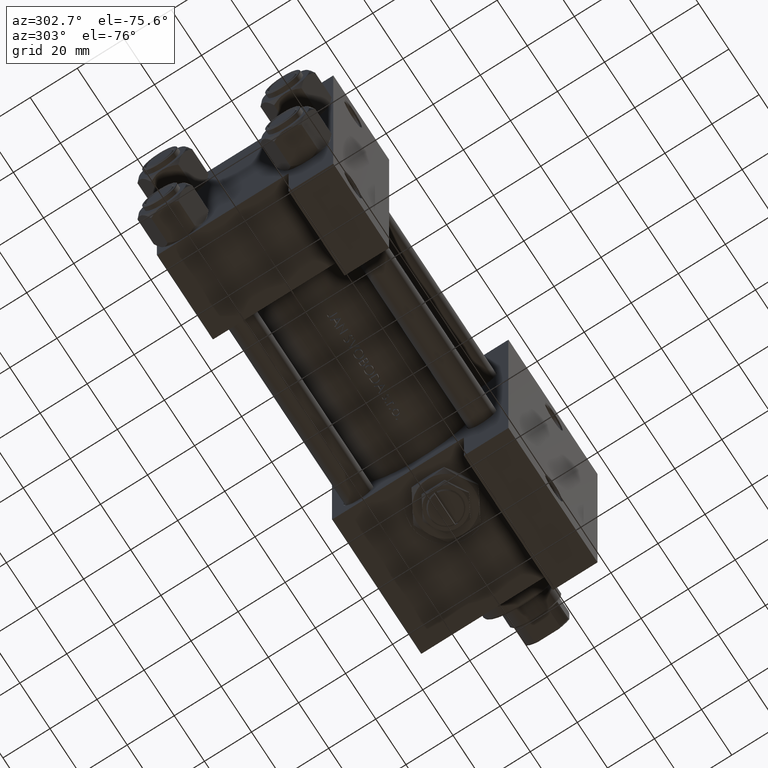
[diagram: clean part render]
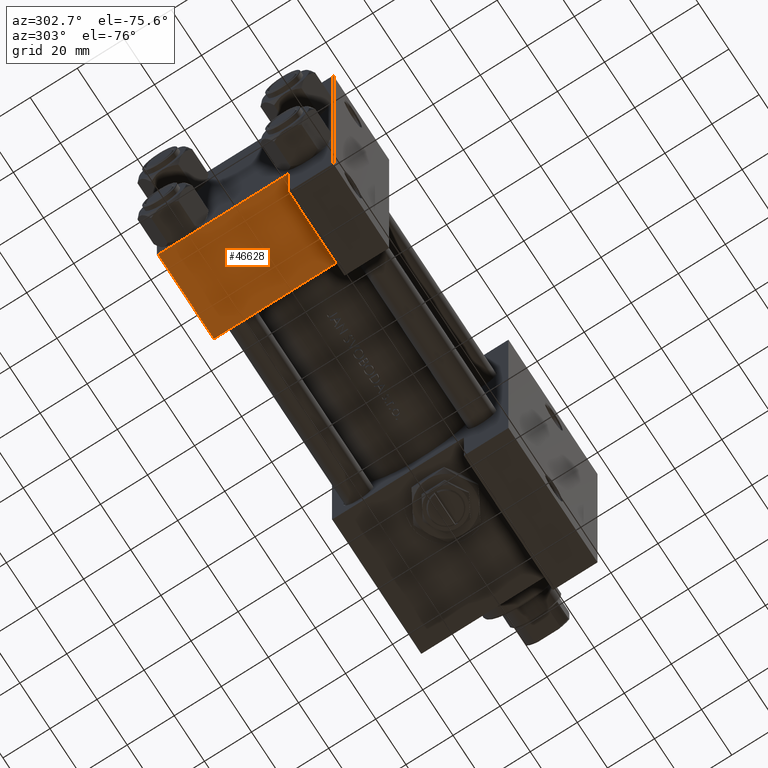
[diagram: same view with one face highlighted and labeled with its STEP entity id]
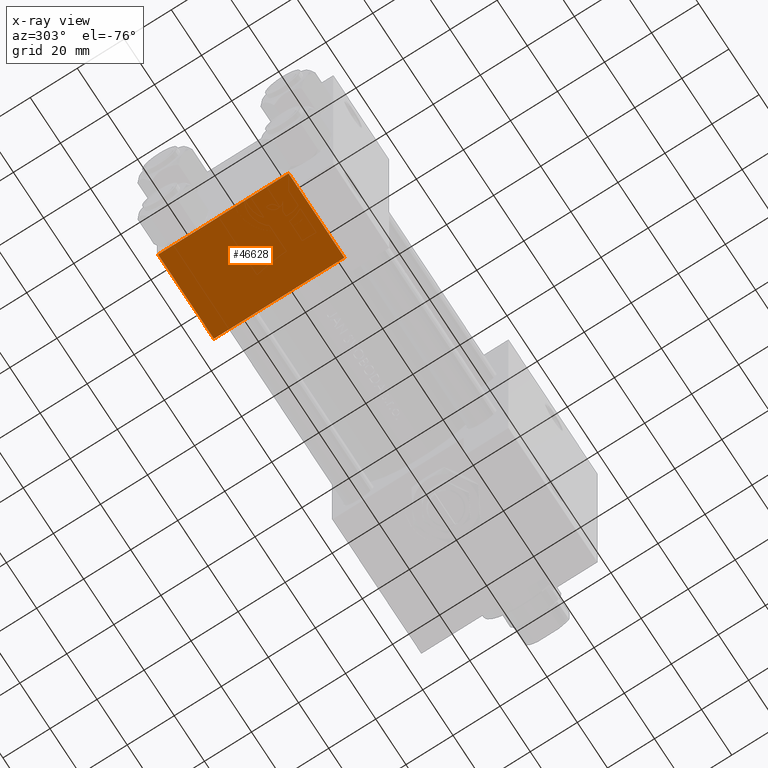
[diagram: x-ray of the same camera — body ghosted, the highlighted face saturated]
A machine part, auxiliary view. The second image highlights one B-rep face of the part: STEP entity #46628.
The next image is the same camera in x-ray: the body ghosted, the highlighted face saturated — about 0% of this face is hidden behind the body in this view.
In plain terms, the highlighted planar face has unit normal (0, 0, -1).
Its self-contained STEP definition (entity closure, byte-faithful):
#1058 = LINE ( 'NONE', #34710, #45488 ) ;
#3057 = ORIENTED_EDGE ( 'NONE', *, *, #31985, .F. ) ;
#3506 = CARTESIAN_POINT ( 'NONE',  ( 0.000000000000000000, 37.49999999999999289, -18.49999999999999645 ) ) ;
#4250 = CARTESIAN_POINT ( 'NONE',  ( 37.00000000000000000, 37.49999999999999289, 37.00000000000000000 ) ) ;
#5045 = DIRECTION ( 'NONE',  ( 0.000000000000000000, -0.000000000000000000, 1.000000000000000000 ) ) ;
#6589 = VERTEX_POINT ( 'NONE', #35407 ) ;
#8298 = EDGE_CURVE ( 'NONE', #33370, #17934, #22436, .T. ) ;
#9250 = EDGE_LOOP ( 'NONE', ( #38232, #3057, #15443, #44083 ) ) ;
#13660 = VERTEX_POINT ( 'NONE', #3506 ) ;
#15443 = ORIENTED_EDGE ( 'NONE', *, *, #34949, .T. ) ;
#17934 = VERTEX_POINT ( 'NONE', #18090 ) ;
#18090 = CARTESIAN_POINT ( 'NONE',  ( 37.00000000000000711, 37.50000000000000711, -18.50000000000000355 ) ) ;
#18872 = DIRECTION ( 'NONE',  ( 0.000000000000000000, 0.000000000000000000, -1.000000000000000000 ) ) ;
#22436 = LINE ( 'NONE', #37635, #35011 ) ;
#23236 = VECTOR ( 'NONE', #41133, 1000.000000000000000 ) ;
#23496 = CARTESIAN_POINT ( 'NONE',  ( 37.00000000000000000, 37.49999999999999289, 37.50000000000000000 ) ) ;
#24471 = PLANE ( 'NONE',  #47282 ) ;
#25495 = VECTOR ( 'NONE', #18872, 1000.000000000000000 ) ;
#30132 = DIRECTION ( 'NONE',  ( 0.000000000000000000, 0.000000000000000000, -1.000000000000000000 ) ) ;
#30959 = DIRECTION ( 'NONE',  ( 1.000000000000000000, -3.750753461571474945E-16, 0.000000000000000000 ) ) ;
#31938 = FACE_OUTER_BOUND ( 'NONE', #9250, .T. ) ;
#31985 = EDGE_CURVE ( 'NONE', #6589, #13660, #39825, .T. ) ;
#33370 = VERTEX_POINT ( 'NONE', #44138 ) ;
#34710 = CARTESIAN_POINT ( 'NONE',  ( 8.470280871287256020E-15, 37.50000000000002842, -18.49999999999999645 ) ) ;
#34949 = EDGE_CURVE ( 'NONE', #6589, #33370, #45827, .T. ) ;
#35011 = VECTOR ( 'NONE', #30132, 1000.000000000000000 ) ;
#35407 = CARTESIAN_POINT ( 'NONE',  ( 0.000000000000000000, 37.49999999999999289, 37.00000000000000000 ) ) ;
#35924 = EDGE_CURVE ( 'NONE', #13660, #17934, #1058, .T. ) ;
#37635 = CARTESIAN_POINT ( 'NONE',  ( 37.00000000000000000, 37.49999999999999289, 37.50000000000000000 ) ) ;
#38232 = ORIENTED_EDGE ( 'NONE', *, *, #35924, .F. ) ;
#39825 = LINE ( 'NONE', #48986, #25495 ) ;
#41133 = DIRECTION ( 'NONE',  ( 1.000000000000000000, 0.000000000000000000, 0.000000000000000000 ) ) ;
#44083 = ORIENTED_EDGE ( 'NONE', *, *, #8298, .T. ) ;
#44138 = CARTESIAN_POINT ( 'NONE',  ( 37.00000000000000000, 37.49999999999999289, 37.00000000000000000 ) ) ;
#45488 = VECTOR ( 'NONE', #30959, 1000.000000000000000 ) ;
#45827 = LINE ( 'NONE', #4250, #23236 ) ;
#46380 = DIRECTION ( 'NONE',  ( -0.000000000000000000, 1.000000000000000000, 0.000000000000000000 ) ) ;
#46628 = ADVANCED_FACE ( 'NONE', ( #31938 ), #24471, .T. ) ;
#47282 = AXIS2_PLACEMENT_3D ( 'NONE', #23496, #46380, #5045 ) ;
#48986 = CARTESIAN_POINT ( 'NONE',  ( 0.000000000000000000, 37.49999999999999289, 37.50000000000000000 ) ) ;